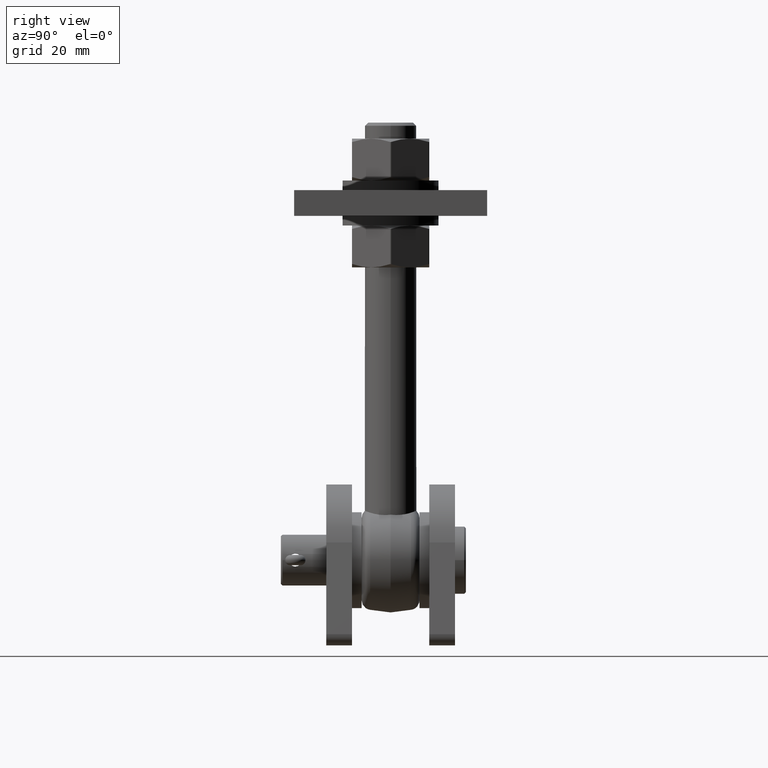
[diagram: clean part render]
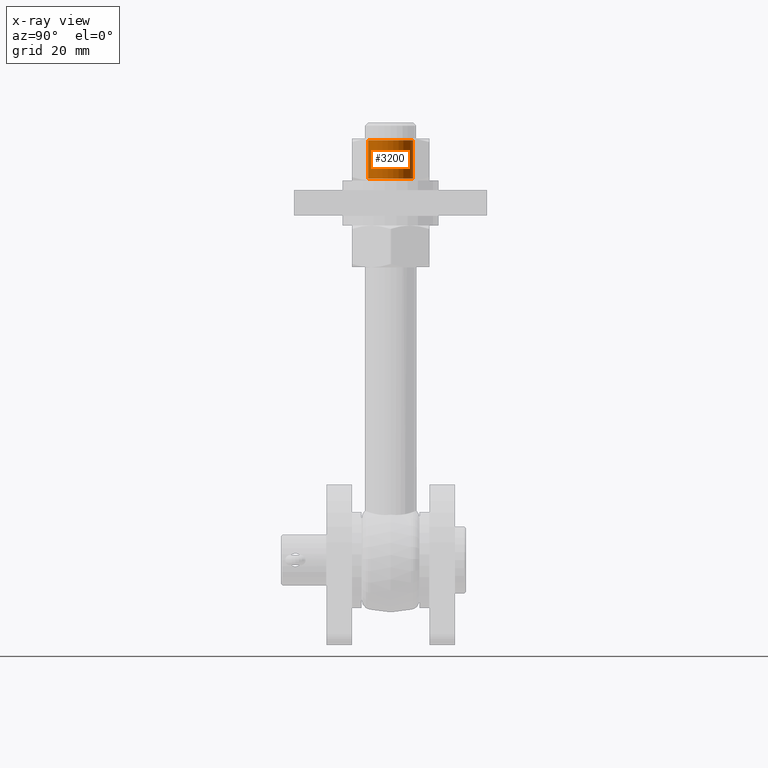
[diagram: x-ray — body ghosted, one internal face saturated and labeled with its STEP entity id]
A machine part, right view, then the same camera in x-ray: the body is ghosted and one INTERNAL B-rep face — a face not visible from any outside direction — is saturated and labeled: STEP entity #3200.
In plain terms, the highlighted cylindrical surface (bore or boss wall) has radius 7 mm, axis along (-0, -0, -1).
Its self-contained STEP definition (entity closure, byte-faithful):
#541 = CIRCLE ( 'NONE', #5310, 6.999999999999991118 ) ;
#816 = AXIS2_PLACEMENT_3D ( 'NONE', #5495, #9902, #13269 ) ;
#1198 = FACE_OUTER_BOUND ( 'NONE', #8179, .T. ) ;
#2024 = AXIS2_PLACEMENT_3D ( 'NONE', #7380, #11831, #5139 ) ;
#2466 = CARTESIAN_POINT ( 'NONE',  ( -6.162975827945325076E-30, 6.000000000000005329, 6.999999999999991118 ) ) ;
#2727 = CYLINDRICAL_SURFACE ( 'NONE', #816, 6.999999999999991118 ) ;
#3200 = ADVANCED_FACE ( 'NONE', ( #9712, #1198 ), #2727, .F. ) ;
#3534 = ORIENTED_EDGE ( 'NONE', *, *, #3585, .T. ) ;
#3585 = EDGE_CURVE ( 'NONE', #11886, #11886, #7252, .T. ) ;
#5139 = DIRECTION ( 'NONE',  ( -8.437386569223764903E-40, 0.000000000000000000, 1.000000000000000000 ) ) ;
#5310 = AXIS2_PLACEMENT_3D ( 'NONE', #8640, #11005, #6351 ) ;
#5495 = CARTESIAN_POINT ( 'NONE',  ( -6.162975822039154730E-30, 6.500000000000005329, 8.920004609581942008E-42 ) ) ;
#6351 = DIRECTION ( 'NONE',  ( -8.437386569223764903E-40, 0.000000000000000000, 1.000000000000000000 ) ) ;
#6796 = CARTESIAN_POINT ( 'NONE',  ( -6.162975827945325076E-30, -6.000000000000005329, 6.999999999999991118 ) ) ;
#7252 = CIRCLE ( 'NONE', #2024, 6.999999999999991118 ) ;
#7380 = CARTESIAN_POINT ( 'NONE',  ( -6.162975822039154730E-30, -6.000000000000005329, -8.233850408869966871E-42 ) ) ;
#8179 = EDGE_LOOP ( 'NONE', ( #3534 ) ) ;
#8640 = CARTESIAN_POINT ( 'NONE',  ( -6.162975822039154730E-30, 6.000000000000005329, 8.233850408849575294E-42 ) ) ;
#9529 = ORIENTED_EDGE ( 'NONE', *, *, #9871, .T. ) ;
#9712 = FACE_OUTER_BOUND ( 'NONE', #13396, .T. ) ;
#9871 = EDGE_CURVE ( 'NONE', #11537, #11537, #541, .T. ) ;
#9902 = DIRECTION ( 'NONE',  ( 0.000000000000000000, 1.000000000000000000, 1.372308401475337047E-42 ) ) ;
#11005 = DIRECTION ( 'NONE',  ( 0.000000000000000000, 1.000000000000000000, 1.372308401475337047E-42 ) ) ;
#11537 = VERTEX_POINT ( 'NONE', #2466 ) ;
#11831 = DIRECTION ( 'NONE',  ( -0.000000000000000000, -1.000000000000000000, -1.372308401475337047E-42 ) ) ;
#11886 = VERTEX_POINT ( 'NONE', #6796 ) ;
#13269 = DIRECTION ( 'NONE',  ( -8.437386569223764903E-40, 0.000000000000000000, 1.000000000000000000 ) ) ;
#13396 = EDGE_LOOP ( 'NONE', ( #9529 ) ) ;